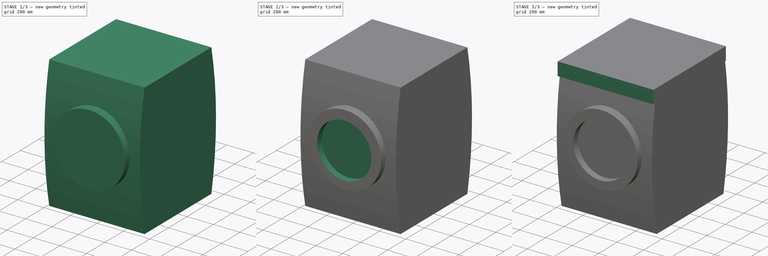
[diagram: build sequence overview — one tinted view per stage of 3, left to right]
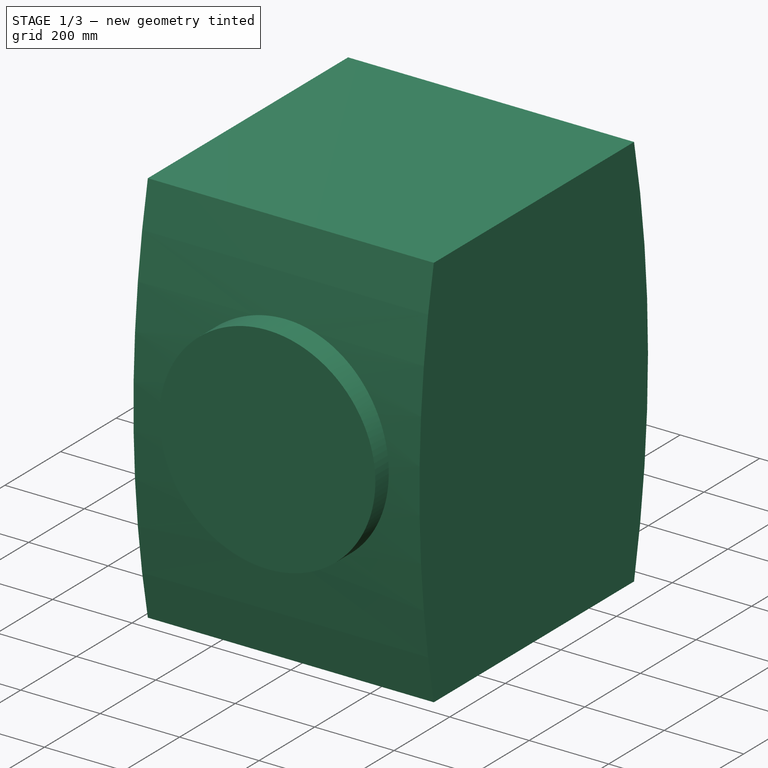
[diagram: stage 1 of 3 — iso view after this stage's code; geometry added in this stage tinted green]
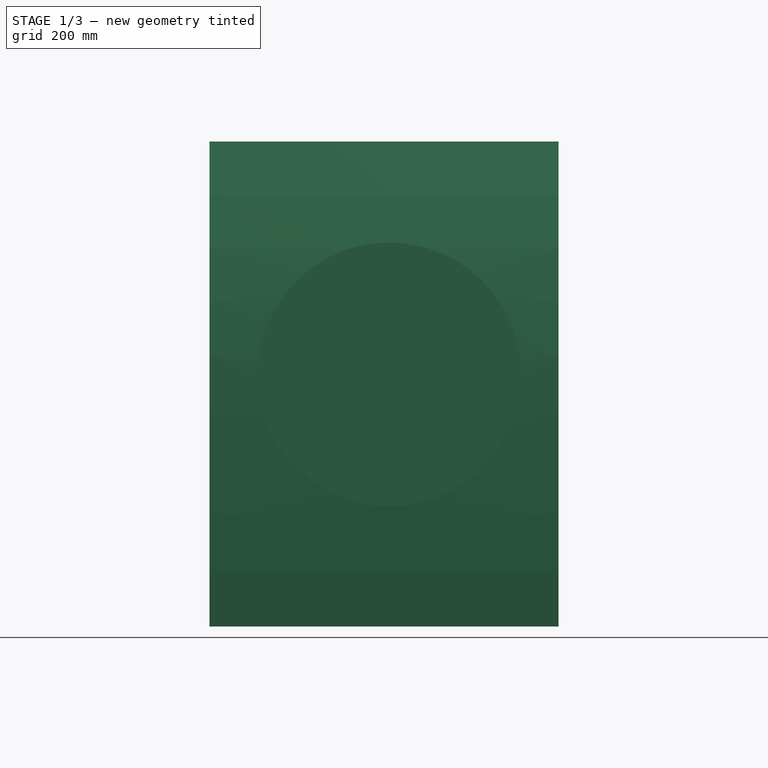
[diagram: stage 1 of 3 — front view after this stage's code; geometry added in this stage tinted green]
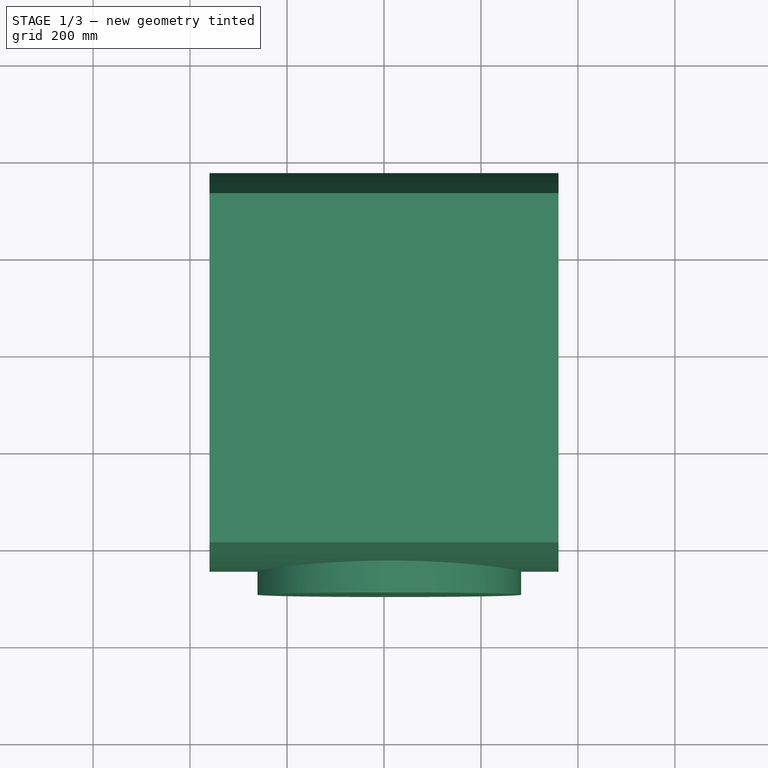
[diagram: stage 1 of 3 — top view after this stage's code; geometry added in this stage tinted green]
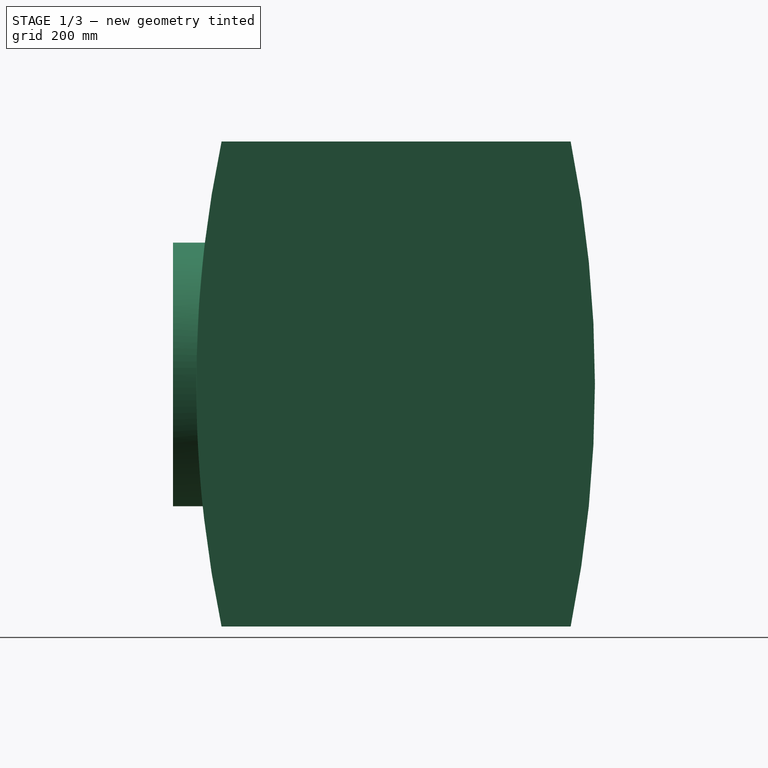
[diagram: stage 1 of 3 — right view after this stage's code; geometry added in this stage tinted green]
FCSTD DOCUMENT  (FreeCAD 1.0R39319 (Git))
Label: washing-machine
License: All rights reserved
LicenseURL: https://en.wikipedia.org/wiki/All_rights_reserved
objects: Sketcher::SketchObject×5, PartDesign::Pad×4, PartDesign::Pocket×1, PartDesign::Body×1
note: 26 computed .brp shape members not serialized (recipe doc carries the construction recipe); baked Part::Feature solids carry a one-line shape summary decoded from their .brp

FEATURE [Sketcher::SketchObject] Sketch
  ArcFitTolerance = 1e-06
  AttachmentSupport = -> [YZ_Plane]
  FullyConstrained = false
  MakeInternals = false
  MapMode = 5
  Placement = pos=(0,0,0) rot=(0.57735,0.57735,0.57735;2.0944rad)
  sketch-geometry (4):
    g0: LineSegment StartX=0 StartY=-3.411e-13 StartZ=0 EndX=720 EndY=-3.411e-13 EndZ=0
    g1: LineSegment StartX=0 StartY=1000 StartZ=0 EndX=720 EndY=1000 EndZ=0
    g2: ArcOfCircle CenterX=2385.84 CenterY=500 CenterZ=0 NormalX=0 NormalY=0 NormalZ=1 AngleXU=0 Radius=2437.67 StartAngle=2.93501 EndAngle=3.34817
    g3: ArcOfCircle CenterX=-1751.12 CenterY=500 CenterZ=0 NormalX=0 NormalY=0 NormalZ=1 AngleXU=0 Radius=2521.2 StartAngle=6.08354 EndAngle=6.48283
  constraints (9):
    c: Distance(g0) = 720
    c: Coincident(g0,g-1)
    c: Horizontal(g0)
    c: PointOnObject(g1,g-2)
    c: Distance(g1) = 720
    c: Horizontal(g1)
    c: Coincident(g2,g0)
    c: Coincident(g3,g1)
    c: Coincident(g3,g0)
FEATURE [PartDesign::Pad] Pad
  Direction = (1,0,0)
  Length = 360
  Length2 = 360
  Placement = pos=(0,0,0) rot=(1,1,1;2.0944rad)
  Profile = -> Sketch
  ReferenceAxis = -> Sketch [N_Axis]
  Refine = true
  Suppressed = false
  Type = 4
FEATURE [Sketcher::SketchObject] Sketch001
  ArcFitTolerance = 1e-06
  AttachmentSupport = -> [XZ_Plane]
  FullyConstrained = false
  MakeInternals = false
  MapMode = 5
  Placement = pos=(0,0,0) rot=(1,0,0;1.5708rad)
  sketch-geometry (1):
    g0: Circle CenterX=10.9536 CenterY=519.742 CenterZ=0 NormalX=0 NormalY=0 NormalZ=1 AngleXU=0 Radius=271.856
FEATURE [PartDesign::Pad] Pad001
  BaseFeature = -> Pad
  Direction = (0,-1,2e-16)
  Length = 100
  Length2 = 10
  Placement = pos=(0,0,0) rot=(1,1,1;2.0944rad)
  Profile = -> Sketch001
  ReferenceAxis = -> Sketch001 [N_Axis]
  Refine = true
  Suppressed = false
  Type = 0
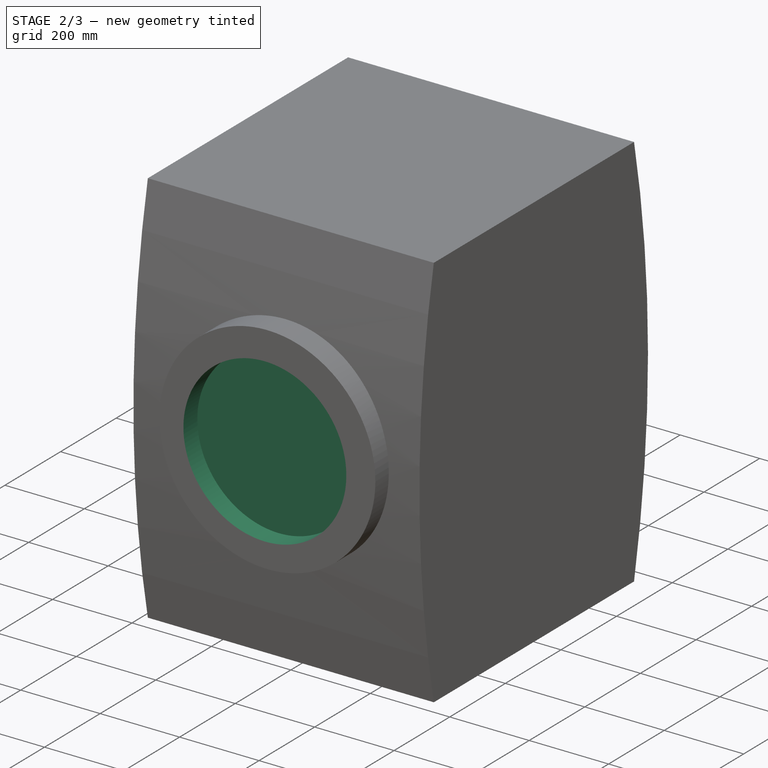
[diagram: stage 2 of 3 — iso view after this stage's code; geometry added in this stage tinted green]
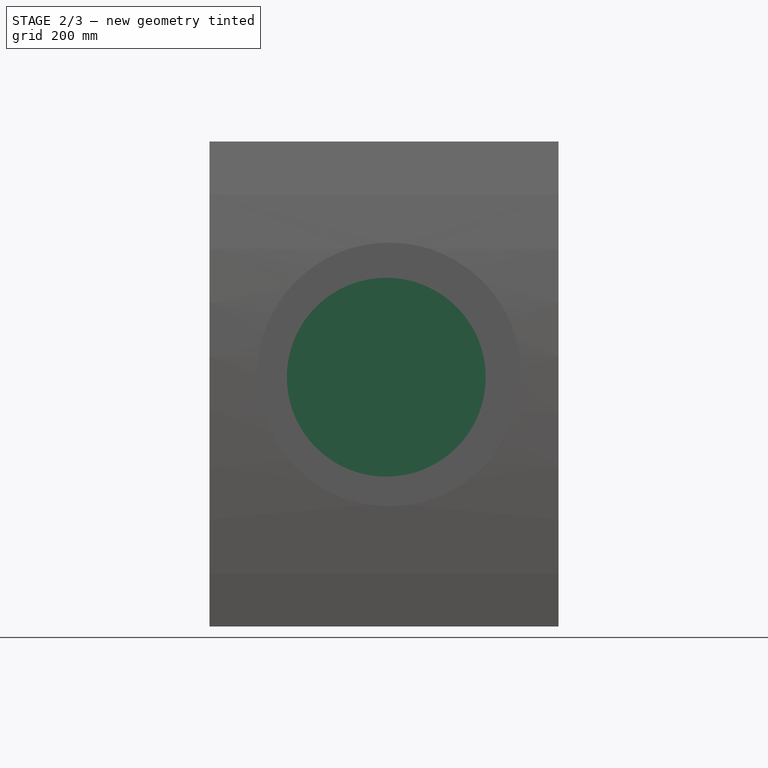
[diagram: stage 2 of 3 — front view after this stage's code; geometry added in this stage tinted green]
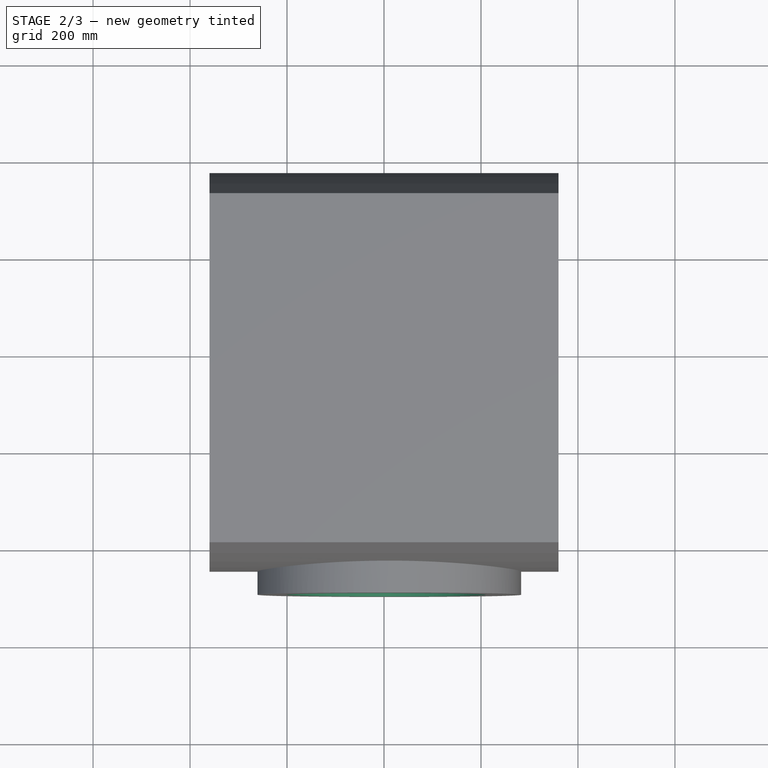
[diagram: stage 2 of 3 — top view after this stage's code; geometry added in this stage tinted green]
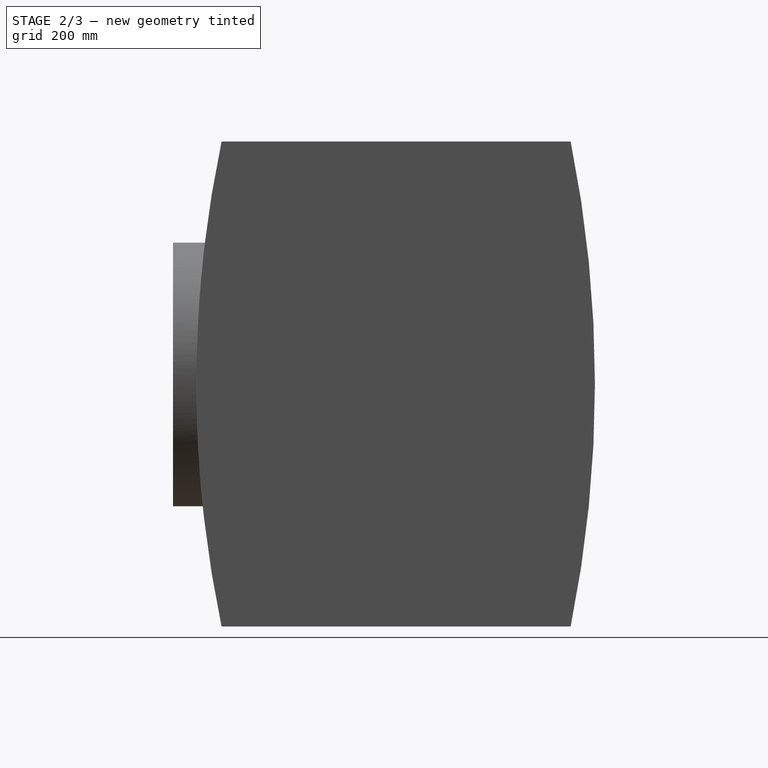
[diagram: stage 2 of 3 — right view after this stage's code; geometry added in this stage tinted green]
FEATURE [Sketcher::SketchObject] Sketch002
  ArcFitTolerance = 1e-06
  AttachmentSupport = -> [Pad001]
  FullyConstrained = false
  MakeInternals = false
  MapMode = 5
  Placement = pos=(0,-100,5.55e-14) rot=(0.57735,0.57735,-0.57735;2.0944rad)
  sketch-geometry (1):
    g0: Circle CenterX=-514.021 CenterY=4.68151 CenterZ=0 NormalX=0 NormalY=0 NormalZ=1 AngleXU=0 Radius=205.043
FEATURE [PartDesign::Pocket] Pocket
  BaseFeature = -> Pad001
  Direction = (0,1,0)
  Length = 50
  Length2 = 5
  Placement = pos=(0,0,0) rot=(1,1,1;2.0944rad)
  Profile = -> Sketch002
  ReferenceAxis = -> Sketch002 [N_Axis]
  Refine = true
  Suppressed = false
  Type = 0
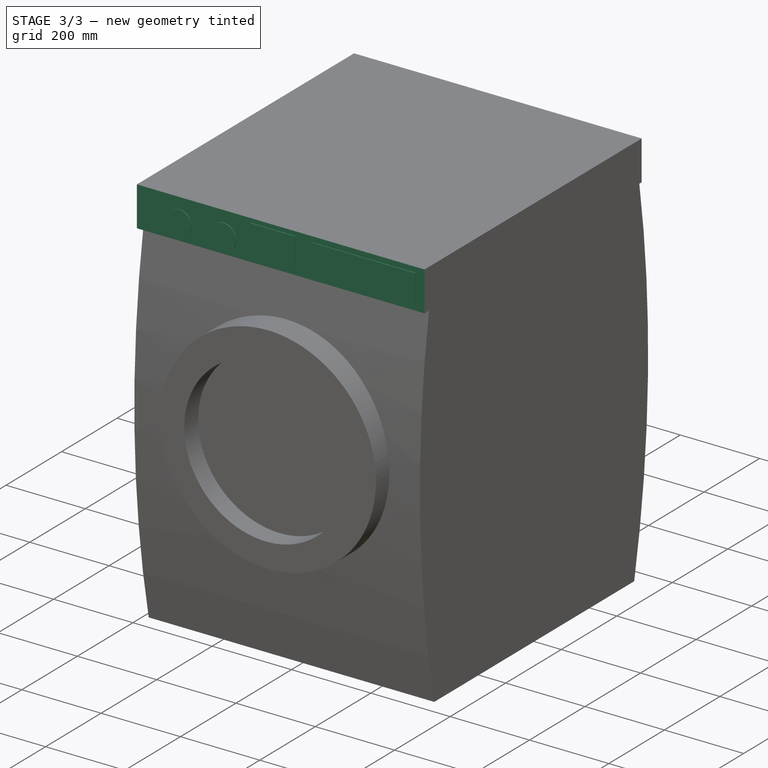
[diagram: stage 3 of 3 — iso view after this stage's code; geometry added in this stage tinted green]
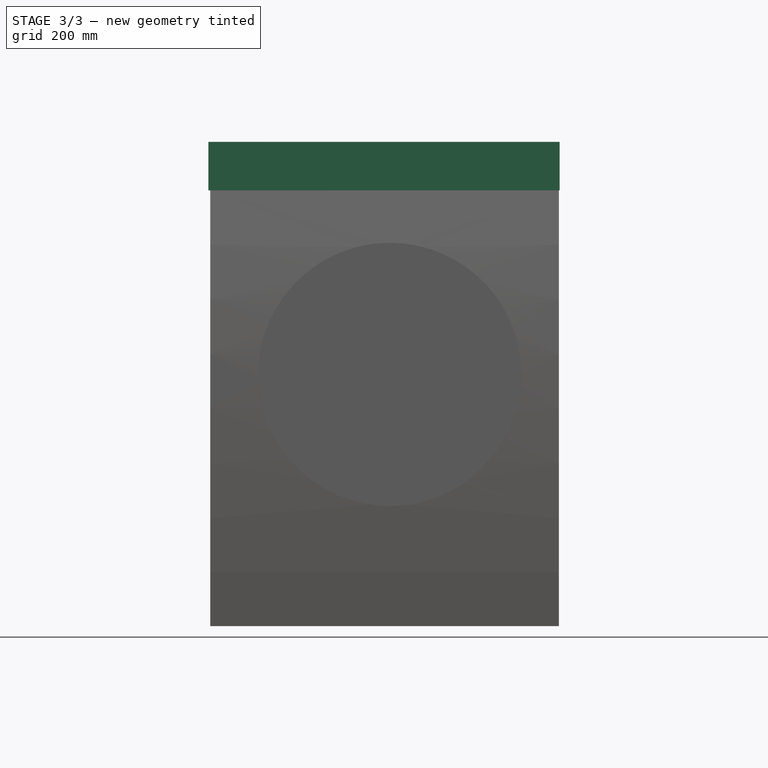
[diagram: stage 3 of 3 — front view after this stage's code; geometry added in this stage tinted green]
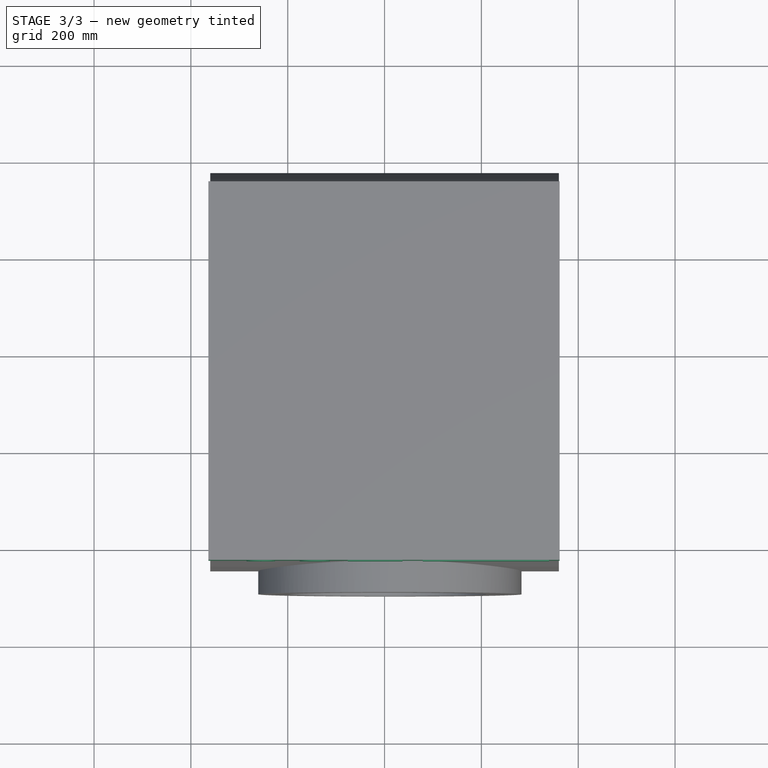
[diagram: stage 3 of 3 — top view after this stage's code; geometry added in this stage tinted green]
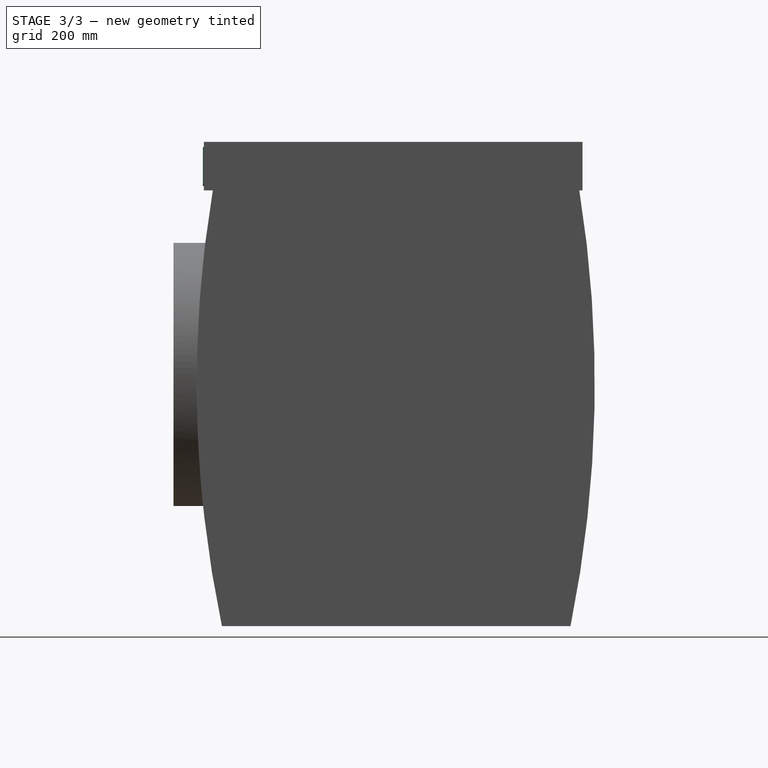
[diagram: stage 3 of 3 — right view after this stage's code; geometry added in this stage tinted green]
FEATURE [Sketcher::SketchObject] Sketch003
  ArcFitTolerance = 1e-06
  AttachmentSupport = -> [Pocket]
  FullyConstrained = false
  MakeInternals = false
  MapMode = 5
  Placement = pos=(-7.772e-13,5.551e-13,1000) rot=(0,0,-1;1.5708rad)
  sketch-geometry (4):
    g0: LineSegment StartX=-744.783 StartY=361.478 StartZ=0 EndX=-744.783 EndY=-363.794 EndZ=0
    g1: LineSegment StartX=-744.783 StartY=-363.794 StartZ=0 EndX=37.2172 EndY=-363.794 EndZ=0
    g2: LineSegment StartX=37.2172 StartY=-363.794 StartZ=0 EndX=37.2172 EndY=361.478 EndZ=0
    g3: LineSegment StartX=37.2172 StartY=361.478 StartZ=0 EndX=-744.783 EndY=361.478 EndZ=0
  constraints (8):
    c: Coincident(g0,g1)
    c: Coincident(g1,g2)
    c: Coincident(g2,g3)
    c: Coincident(g3,g0)
    c: Vertical(g0)
    c: Vertical(g2)
    c: Horizontal(g1)
    c: Horizontal(g3)
FEATURE [PartDesign::Pad] Pad002
  BaseFeature = -> Pocket
  Direction = (0,0,1)
  Length = 100
  Length2 = 10
  Placement = pos=(0,0,0) rot=(1,1,1;2.0944rad)
  Profile = -> Sketch003
  ReferenceAxis = -> Sketch003 [N_Axis]
  Refine = true
  Reversed = true
  Suppressed = false
  Type = 0
FEATURE [Sketcher::SketchObject] Sketch004
  ArcFitTolerance = 1e-06
  AttachmentSupport = -> [Pad002]
  FullyConstrained = false
  MakeInternals = false
  MapMode = 5
  Placement = pos=(0,-37.2172,4.1e-15) rot=(0.57735,0.57735,-0.57735;2.0944rad)
  sketch-geometry (10):
    g0: Circle CenterX=-942.984 CenterY=-255.463 CenterZ=0 NormalX=0 NormalY=0 NormalZ=1 AngleXU=0 Radius=29.3121
    g1: Circle CenterX=-940.088 CenterY=-143.997 CenterZ=0 NormalX=0 NormalY=0 NormalZ=1 AngleXU=0 Radius=31.2498
    g2: LineSegment StartX=-986.412 StartY=339.509 StartZ=0 EndX=-986.412 EndY=78.9369 EndZ=0
    g3: LineSegment StartX=-986.412 StartY=78.9369 StartZ=0 EndX=-914.031 EndY=78.9369 EndZ=0
    g4: LineSegment StartX=-914.031 StartY=78.9369 StartZ=0 EndX=-914.031 EndY=339.509 EndZ=0
    g5: LineSegment StartX=-914.031 StartY=339.509 StartZ=0 EndX=-986.412 EndY=339.509 EndZ=0
    g6: LineSegment StartX=-989.307 StartY=36.9559 StartZ=0 EndX=-989.307 EndY=-75.9584 EndZ=0
    g7: LineSegment StartX=-989.307 StartY=-75.9584 StartZ=0 EndX=-915.479 EndY=-75.9584 EndZ=0
    g8: LineSegment StartX=-915.479 StartY=-75.9584 StartZ=0 EndX=-915.479 EndY=36.9559 EndZ=0
    g9: LineSegment StartX=-915.479 StartY=36.9559 StartZ=0 EndX=-989.307 EndY=36.9559 EndZ=0
  constraints (16):
    c: Coincident(g2,g3)
    c: Coincident(g3,g4)
    c: Coincident(g4,g5)
    c: Coincident(g5,g2)
    c: Vertical(g2)
    c: Vertical(g4)
    c: Horizontal(g3)
    c: Horizontal(g5)
    c: Coincident(g6,g7)
    c: Coincident(g7,g8)
    c: Coincident(g8,g9)
    c: Coincident(g9,g6)
    c: Vertical(g6)
    c: Vertical(g8)
    c: Horizontal(g7)
    c: Horizontal(g9)
FEATURE [PartDesign::Pad] Pad003
  BaseFeature = -> Pad002
  Direction = (0,-1,0)
  Length = 2
  Length2 = 10
  Placement = pos=(0,0,0) rot=(1,1,1;2.0944rad)
  Profile = -> Sketch004
  ReferenceAxis = -> Sketch004 [N_Axis]
  Refine = true
  Suppressed = false
  Type = 0
FEATURE [PartDesign::Body] Body
  AllowCompound = false
  Group = -> [Sketch,Pad,Sketch001,Pad001,Sketch002,Pocket,Sketch003,Pad002,Sketch004,Pad003]
  Origin = -> Origin
  Tip = -> Pad003
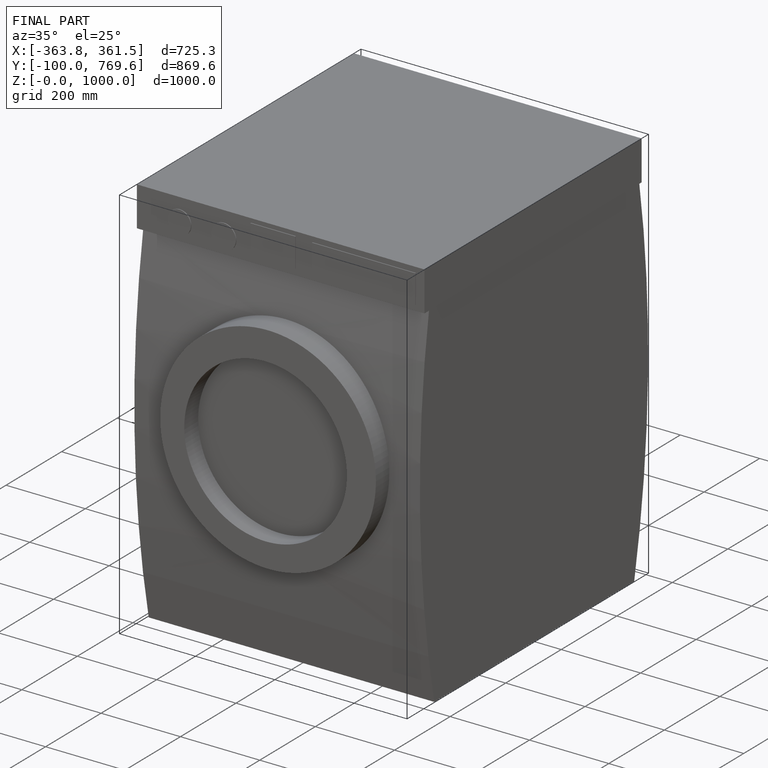
[diagram: finished part — iso view with bounding-box wireframe]
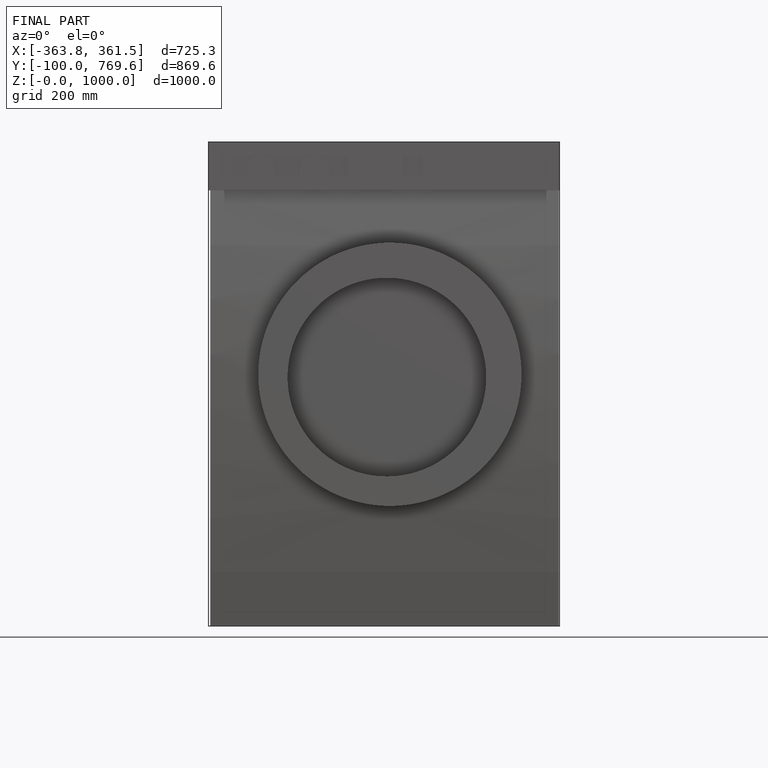
[diagram: finished part — front view with bounding-box wireframe]
